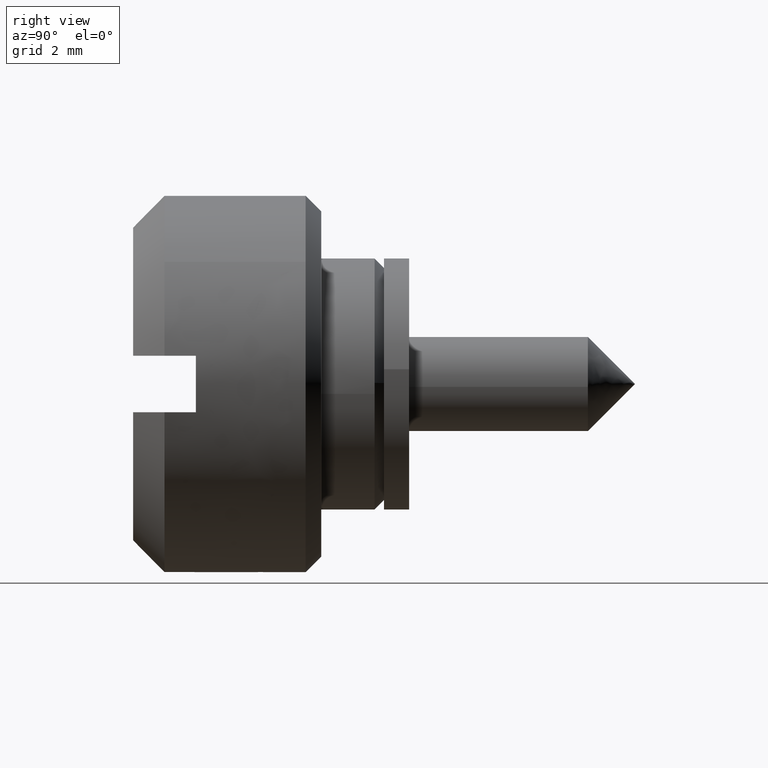
[diagram: clean part render]
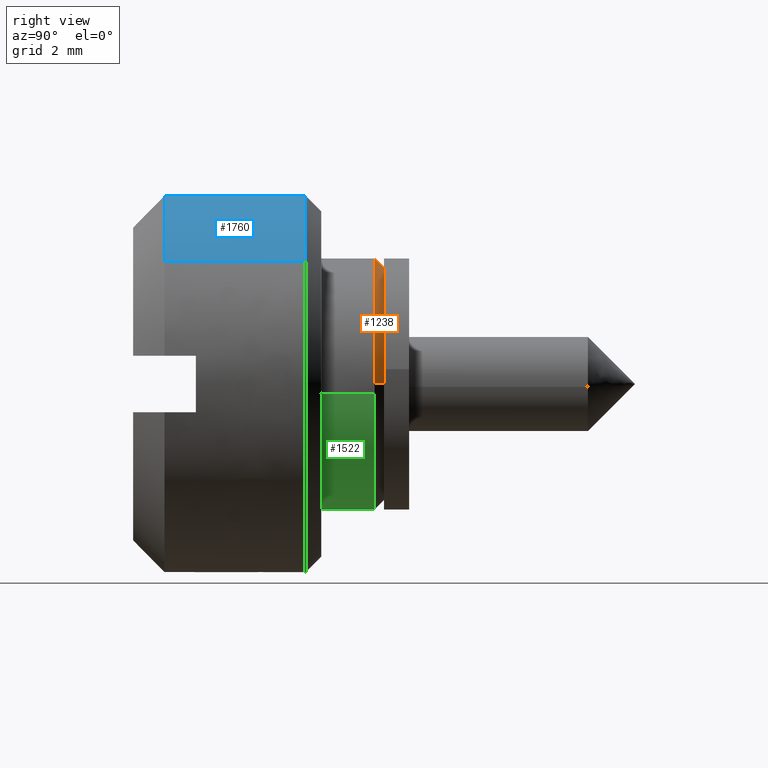
[diagram: same view with three faces highlighted in distinct colors, each labeled with its STEP entity id]
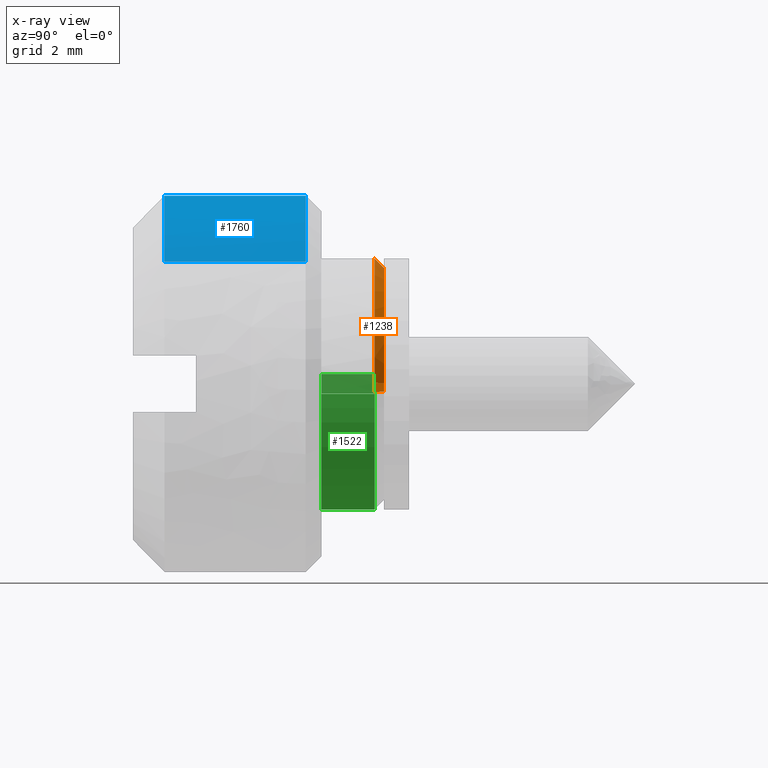
[diagram: x-ray of the same camera — body ghosted, the three highlighted faces saturated]
A machine part, right view with three faces highlighted in distinct colors.
The next image is the same camera in x-ray (body ghosted, the three faces saturated) — at least one of them is partly hidden behind the body in this view.
Their STEP definitions:

[orange] entity #1238 — the highlighted face is a freeform B-spline surface patch.
#1041=CARTESIAN_POINT('',(-0.300000000000820,3.991304303438717,-0.263609478885543));
#1042=VERTEX_POINT('',#1041);
#1058=CARTESIAN_POINT('',(-2.024692E-012,3.691956480681434,-0.243838767978479));
#1059=VERTEX_POINT('',#1058);
#1060=CARTESIAN_POINT('',(-2.024692E-012,3.691956480681434,-0.243838767978479));
#1061=CARTESIAN_POINT('',(-0.300000000000820,3.991304303438717,-0.263609478885543));
#1062=QUASI_UNIFORM_CURVE('',1,(#1060,#1061),.UNSPECIFIED.,.F.,.U.);
#1063=EDGE_CURVE('',#1059,#1042,#1062,.T.);
#1080=CARTESIAN_POINT('',(-1.196692E-012,-3.699859115338553,0.032288181352966));
#1081=VERTEX_POINT('',#1080);
#1097=CARTESIAN_POINT('',(-0.300000000000431,-3.999847692257118,0.034906141997079));
#1098=VERTEX_POINT('',#1097);
#1099=CARTESIAN_POINT('',(-1.196692E-012,-3.699859115338553,0.032288181352966));
#1100=CARTESIAN_POINT('',(-0.300000000000431,-3.999847692257118,0.034906141997079));
#1101=QUASI_UNIFORM_CURVE('',1,(#1099,#1100),.UNSPECIFIED.,.F.,.U.);
#1102=EDGE_CURVE('',#1081,#1098,#1101,.T.);
#1137=CARTESIAN_POINT('',(0.007499999999999,-3.692359400914452,0.032222732327909));
#1138=CARTESIAN_POINT('',(0.007499999999999,-3.660136668586706,3.724582133242360));
#1139=CARTESIAN_POINT('',(0.007499999999999,0.032222732327746,3.692359400914615));
#1140=CARTESIAN_POINT('',(0.007499999999999,3.724582133242197,3.660136668586870));
#1141=CARTESIAN_POINT('',(0.007499999999999,3.692359400914452,-0.032222732327582));
#1142=CARTESIAN_POINT('',(0.007499999999999,3.691437200159053,-0.137896472036863));
#1143=CARTESIAN_POINT('',(0.007499999999999,3.684472785111475,-0.243344500190182));
#1144=CARTESIAN_POINT('',(-0.307687499999966,-4.007534899540239,0.034973227235303));
#1145=CARTESIAN_POINT('',(-0.307687499999966,-3.972561672305100,4.042508126775543));
#1146=CARTESIAN_POINT('',(-0.307687499999966,0.034973227235139,4.007534899540403));
#1147=CARTESIAN_POINT('',(-0.307687499999966,4.042508126775378,3.972561672305263));
#1148=CARTESIAN_POINT('',(-0.307687499999966,4.007534899540239,-0.034973227234976));
#1149=CARTESIAN_POINT('',(-0.307687499999966,4.006533980802284,-0.149667154306374));
#1150=CARTESIAN_POINT('',(-0.307687499999966,3.998975091396463,-0.264116103346240));
#1158=(BOUNDED_SURFACE()B_SPLINE_SURFACE(2,1,((#1137,#1144),(#1138,#1145),(#1139,#1146),(#1140,#1147),(#1141,#1148),(#1142,#1149),(#1143,#1150)),.UNSPECIFIED.,.F.,.F.,.U.)B_SPLINE_SURFACE_WITH_KNOTS((3,2,2,3),(2,2),(0.0,6.640154065012492,13.280308130024981,13.545914292625490),(0.0,0.445742437190445),.UNSPECIFIED.)GEOMETRIC_REPRESENTATION_ITEM()RATIONAL_B_SPLINE_SURFACE(((1.0,1.0),(0.707106781186548,0.707106781186548),(1.0,1.0),(0.707106781186548,0.707106781186548),(1.0,1.0),(0.988284271247462,0.988284271247462),(0.977505800795127,0.977505800795127)))REPRESENTATION_ITEM('')SURFACE());
#1159=CARTESIAN_POINT('',(-0.299999999999967,3.987669622285608,0.313832731701521));
#1160=VERTEX_POINT('',#1159);
#1161=CARTESIAN_POINT('',(-0.299999999999967,3.987669622285608,0.313832731701521));
#1162=CARTESIAN_POINT('',(-0.299999999999967,4.000000000000000,0.157158593953940));
#1163=CARTESIAN_POINT('',(-0.299999999999967,4.0,1.634248E-013));
#1164=CARTESIAN_POINT('',(-0.299999999999967,4.000000000000001,-0.131948162093345));
#1165=CARTESIAN_POINT('',(-0.300000000000820,3.991304303438717,-0.263609478885543));
#1173=(BOUNDED_CURVE()B_SPLINE_CURVE(2,(#1161,#1162,#1163,#1164,#1165),.UNSPECIFIED.,.F.,.U.)B_SPLINE_CURVE_WITH_KNOTS((3,2,3),(0.736331457593343,0.750000000000000,0.761505472927328),.UNSPECIFIED.)CURVE()GEOMETRIC_REPRESENTATION_ITEM()RATIONAL_B_SPLINE_CURVE((0.969723683736795,0.983986306472105,1.0,0.986520500001375,0.974281704181216))REPRESENTATION_ITEM(''));
#1174=EDGE_CURVE('',#1160,#1042,#1173,.T.);
#1175=ORIENTED_EDGE('',*,*,#1174,.F.);
#1176=CARTESIAN_POINT('',(-0.299999999999967,0.0,4.000000000000163));
#1177=VERTEX_POINT('',#1176);
#1178=CARTESIAN_POINT('',(-0.299999999999967,0.0,4.000000000000163));
#1179=CARTESIAN_POINT('',(-0.299999999999967,3.697565362683348,4.000000000000163));
#1180=CARTESIAN_POINT('',(-0.299999999999967,3.987669622285608,0.313832731701521));
#1188=(BOUNDED_CURVE()B_SPLINE_CURVE(2,(#1178,#1179,#1180),.UNSPECIFIED.,.F.,.U.)B_SPLINE_CURVE_WITH_KNOTS((3,3),(0.500000000000000,0.736331457593343),.UNSPECIFIED.)CURVE()GEOMETRIC_REPRESENTATION_ITEM()RATIONAL_B_SPLINE_CURVE((1.0,0.723120474714443,0.969723683736795))REPRESENTATION_ITEM(''));
#1189=EDGE_CURVE('',#1177,#1160,#1188,.T.);
#1190=ORIENTED_EDGE('',*,*,#1189,.F.);
#1191=CARTESIAN_POINT('',(-0.300000000000431,-3.999847692257119,0.034906141997079));
#1192=CARTESIAN_POINT('',(-0.299999999999967,-3.965244842373139,4.000000000000163));
#1193=CARTESIAN_POINT('',(-0.299999999999967,0.0,4.000000000000163));
#1201=(BOUNDED_CURVE()B_SPLINE_CURVE(2,(#1191,#1192,#1193),.UNSPECIFIED.,.F.,.U.)B_SPLINE_CURVE_WITH_KNOTS((3,3),(0.251539894335288,0.500000000000000),.UNSPECIFIED.)CURVE()GEOMETRIC_REPRESENTATION_ITEM()RATIONAL_B_SPLINE_CURVE((0.996414028099709,0.708910879620528,1.0))REPRESENTATION_ITEM(''));
#1202=EDGE_CURVE('',#1098,#1177,#1201,.T.);
#1203=ORIENTED_EDGE('',*,*,#1202,.F.);
#1204=ORIENTED_EDGE('',*,*,#1102,.F.);
#1205=CARTESIAN_POINT('',(0.0,0.0,3.700000000000164));
#1206=VERTEX_POINT('',#1205);
#1207=CARTESIAN_POINT('',(0.0,0.0,3.700000000000164));
#1208=CARTESIAN_POINT('',(0.0,-3.667851479183951,3.700000000000164));
#1209=CARTESIAN_POINT('',(-1.196692E-012,-3.699859115338553,0.032288181352966));
#1217=(BOUNDED_CURVE()B_SPLINE_CURVE(2,(#1207,#1208,#1209),.UNSPECIFIED.,.F.,.U.)B_SPLINE_CURVE_WITH_KNOTS((3,3),(0.0,0.248460105664174),.UNSPECIFIED.)CURVE()GEOMETRIC_REPRESENTATION_ITEM()RATIONAL_B_SPLINE_CURVE((1.0,0.708910879621158,0.996414028098464))REPRESENTATION_ITEM(''));
#1218=EDGE_CURVE('',#1206,#1081,#1217,.T.);
#1219=ORIENTED_EDGE('',*,*,#1218,.F.);
#1220=CARTESIAN_POINT('',(-2.024692E-012,3.691956480681434,-0.243838767978479));
#1221=CARTESIAN_POINT('',(0.0,3.700000000000001,-0.122052049945640));
#1222=CARTESIAN_POINT('',(0.0,3.700000000000000,1.634248E-013));
#1223=CARTESIAN_POINT('',(0.0,3.700000000000000,3.700000000000164));
#1224=CARTESIAN_POINT('',(0.0,0.0,3.700000000000164));
#1232=(BOUNDED_CURVE()B_SPLINE_CURVE(2,(#1220,#1221,#1222,#1223,#1224),.UNSPECIFIED.,.F.,.U.)B_SPLINE_CURVE_WITH_KNOTS((3,2,3),(0.738494527071806,0.750000000000000,1.0),.UNSPECIFIED.)CURVE()GEOMETRIC_REPRESENTATION_ITEM()RATIONAL_B_SPLINE_CURVE((0.974281704179374,0.986520500000361,1.0,0.707106781186548,1.0))REPRESENTATION_ITEM(''));
#1233=EDGE_CURVE('',#1059,#1206,#1232,.T.);
#1234=ORIENTED_EDGE('',*,*,#1233,.F.);
#1235=ORIENTED_EDGE('',*,*,#1063,.T.);
#1236=EDGE_LOOP('',(#1175,#1190,#1203,#1204,#1219,#1234,#1235));
#1237=FACE_OUTER_BOUND('',#1236,.T.);
#1238=ADVANCED_FACE('',(#1237),#1158,.T.);

[blue] entity #1760 — the highlighted face is a freeform B-spline surface patch.
#1345=CARTESIAN_POINT('',(-2.500000000000060,3.896687813416691,4.562436200624721));
#1346=VERTEX_POINT('',#1345);
#1362=CARTESIAN_POINT('',(-2.500000000000060,0.0,6.000000000000163));
#1363=VERTEX_POINT('',#1362);
#1364=CARTESIAN_POINT('',(-2.500000000000060,0.0,6.000000000000163));
#1365=CARTESIAN_POINT('',(-2.500000000000060,2.213516150637296,6.000000000000163));
#1366=CARTESIAN_POINT('',(-2.500000000000060,3.896687813416691,4.562436200624721));
#1374=(BOUNDED_CURVE()B_SPLINE_CURVE(2,(#1364,#1365,#1366),.UNSPECIFIED.,.F.,.U.)B_SPLINE_CURVE_WITH_KNOTS((3,3),(0.500000000000000,0.613143129778950),.UNSPECIFIED.)CURVE()GEOMETRIC_REPRESENTATION_ITEM()RATIONAL_B_SPLINE_CURVE((1.0,0.867444578129661,0.854871038655955))REPRESENTATION_ITEM(''));
#1375=EDGE_CURVE('',#1363,#1346,#1374,.T.);
#1377=CARTESIAN_POINT('',(-2.500000000000060,-4.562436147986986,3.896687875047556));
#1378=VERTEX_POINT('',#1377);
#1379=CARTESIAN_POINT('',(-2.500000000000059,-4.562436147986987,3.896687875047557));
#1380=CARTESIAN_POINT('',(-2.500000000000061,-2.766038548208157,6.000000000000165));
#1381=CARTESIAN_POINT('',(-2.500000000000060,0.0,6.000000000000163));
#1389=(BOUNDED_CURVE()B_SPLINE_CURVE(2,(#1379,#1380,#1381),.UNSPECIFIED.,.F.,.U.)B_SPLINE_CURVE_WITH_KNOTS((3,3),(0.363143133861730,0.500000000000000),.UNSPECIFIED.)CURVE()GEOMETRIC_REPRESENTATION_ITEM()RATIONAL_B_SPLINE_CURVE((0.854871037748521,0.839662207840161,1.0))REPRESENTATION_ITEM(''));
#1390=EDGE_CURVE('',#1378,#1363,#1389,.T.);
#1601=CARTESIAN_POINT('',(-6.999999999999997,-4.562436435085173,3.896687538898594));
#1602=VERTEX_POINT('',#1601);
#1693=CARTESIAN_POINT('',(-6.999999999999996,3.896688274229982,4.562435807053074));
#1694=VERTEX_POINT('',#1693);
#1708=CARTESIAN_POINT('',(-6.999999999999996,3.896688274229982,4.562435807053074));
#1709=CARTESIAN_POINT('',(-2.500000000000060,3.896687813416691,4.562436200624721));
#1710=QUASI_UNIFORM_CURVE('',1,(#1708,#1709),.UNSPECIFIED.,.F.,.U.);
#1711=EDGE_CURVE('',#1694,#1346,#1710,.T.);
#1717=CARTESIAN_POINT('',(-6.999999999999997,-4.562436435085173,3.896687538898594));
#1718=CARTESIAN_POINT('',(-2.500000000000060,-4.562436147986986,3.896687875047556));
#1719=QUASI_UNIFORM_CURVE('',1,(#1717,#1718),.UNSPECIFIED.,.F.,.U.);
#1720=EDGE_CURVE('',#1602,#1378,#1719,.T.);
#1725=CARTESIAN_POINT('',(-7.112500000000000,3.896688289981100,4.562435793600348));
#1726=CARTESIAN_POINT('',(-7.112500000000000,-0.665747503619084,8.459124083581449));
#1727=CARTESIAN_POINT('',(-7.112500000000000,-4.562435793600185,3.896688289981264));
#1728=CARTESIAN_POINT('',(-2.384687500000060,3.896688289981100,4.562435793600348));
#1729=CARTESIAN_POINT('',(-2.384687500000061,-0.665747503619084,8.459124083581449));
#1730=CARTESIAN_POINT('',(-2.384687500000061,-4.562435793600185,3.896688289981264));
#1738=(BOUNDED_SURFACE()B_SPLINE_SURFACE(2,1,((#1725,#1728),(#1726,#1729),(#1727,#1730)),.UNSPECIFIED.,.F.,.F.,.U.)B_SPLINE_SURFACE_WITH_KNOTS((3,3),(2,2),(0.0,9.941125496954276),(0.0,4.727812499999940),.UNSPECIFIED.)GEOMETRIC_REPRESENTATION_ITEM()RATIONAL_B_SPLINE_SURFACE(((1.0,1.0),(0.707106781186548,0.707106781186548),(1.0,1.0)))REPRESENTATION_ITEM('')SURFACE());
#1739=CARTESIAN_POINT('',(-6.999999999999996,3.896688274229982,4.562435807053074));
#1740=CARTESIAN_POINT('',(-7.0,2.213516839125651,6.000000000000163));
#1741=CARTESIAN_POINT('',(-7.0,0.0,6.000000000000163));
#1742=CARTESIAN_POINT('',(-7.0,-2.766039084223933,6.000000000000163));
#1743=CARTESIAN_POINT('',(-6.999999999999997,-4.562436435085173,3.896687538898594));
#1751=(BOUNDED_CURVE()B_SPLINE_CURVE(2,(#1739,#1740,#1741,#1742,#1743),.UNSPECIFIED.,.F.,.U.)B_SPLINE_CURVE_WITH_KNOTS((3,2,3),(0.251097611016678,0.500000000000000,0.801962241999008),.UNSPECIFIED.)CURVE()GEOMETRIC_REPRESENTATION_ITEM()RATIONAL_B_SPLINE_CURVE((0.879146101827114,0.879674384710834,1.0,0.854023929978987,0.884364905484971))REPRESENTATION_ITEM(''));
#1752=EDGE_CURVE('',#1694,#1602,#1751,.T.);
#1753=ORIENTED_EDGE('',*,*,#1752,.T.);
#1754=ORIENTED_EDGE('',*,*,#1720,.T.);
#1755=ORIENTED_EDGE('',*,*,#1390,.T.);
#1756=ORIENTED_EDGE('',*,*,#1375,.T.);
#1757=ORIENTED_EDGE('',*,*,#1711,.F.);
#1758=EDGE_LOOP('',(#1753,#1754,#1755,#1756,#1757));
#1759=FACE_OUTER_BOUND('',#1758,.T.);
#1760=ADVANCED_FACE('',(#1759),#1738,.T.);

[green] entity #1522 — the highlighted face is a freeform B-spline surface patch.
#1041=CARTESIAN_POINT('',(-0.300000000000820,3.991304303438717,-0.263609478885543));
#1042=VERTEX_POINT('',#1041);
#1043=CARTESIAN_POINT('',(-0.299999999999967,0.0,-3.999999999999837));
#1044=VERTEX_POINT('',#1043);
#1045=CARTESIAN_POINT('',(-0.300000000000820,3.991304303438717,-0.263609478885543));
#1046=CARTESIAN_POINT('',(-0.299999999999967,3.744530847111790,-3.999999999999837));
#1047=CARTESIAN_POINT('',(-0.299999999999967,0.0,-3.999999999999837));
#1055=(BOUNDED_CURVE()B_SPLINE_CURVE(2,(#1045,#1046,#1047),.UNSPECIFIED.,.F.,.U.)B_SPLINE_CURVE_WITH_KNOTS((3,3),(0.761505472927328,1.0),.UNSPECIFIED.)CURVE()GEOMETRIC_REPRESENTATION_ITEM()RATIONAL_B_SPLINE_CURVE((0.974281704181216,0.720586281185172,1.0))REPRESENTATION_ITEM(''));
#1056=EDGE_CURVE('',#1042,#1044,#1055,.T.);
#1104=CARTESIAN_POINT('',(-0.299999999999967,-3.987669622285608,-0.313832731701195));
#1105=VERTEX_POINT('',#1104);
#1121=CARTESIAN_POINT('',(-0.299999999999967,0.0,-3.999999999999837));
#1122=CARTESIAN_POINT('',(-0.299999999999967,-3.697565362683349,-3.999999999999838));
#1123=CARTESIAN_POINT('',(-0.299999999999967,-3.987669622285608,-0.313832731701195));
#1131=(BOUNDED_CURVE()B_SPLINE_CURVE(2,(#1121,#1122,#1123),.UNSPECIFIED.,.F.,.U.)B_SPLINE_CURVE_WITH_KNOTS((3,3),(0.0,0.236331457593343),.UNSPECIFIED.)CURVE()GEOMETRIC_REPRESENTATION_ITEM()RATIONAL_B_SPLINE_CURVE((1.0,0.723120474714443,0.969723683736795))REPRESENTATION_ITEM(''));
#1132=EDGE_CURVE('',#1044,#1105,#1131,.T.);
#1159=CARTESIAN_POINT('',(-0.299999999999967,3.987669622285608,0.313832731701521));
#1160=VERTEX_POINT('',#1159);
#1161=CARTESIAN_POINT('',(-0.299999999999967,3.987669622285608,0.313832731701521));
#1162=CARTESIAN_POINT('',(-0.299999999999967,4.000000000000000,0.157158593953940));
#1163=CARTESIAN_POINT('',(-0.299999999999967,4.0,1.634248E-013));
#1164=CARTESIAN_POINT('',(-0.299999999999967,4.000000000000001,-0.131948162093345));
#1165=CARTESIAN_POINT('',(-0.300000000000820,3.991304303438717,-0.263609478885543));
#1173=(BOUNDED_CURVE()B_SPLINE_CURVE(2,(#1161,#1162,#1163,#1164,#1165),.UNSPECIFIED.,.F.,.U.)B_SPLINE_CURVE_WITH_KNOTS((3,2,3),(0.736331457593343,0.750000000000000,0.761505472927328),.UNSPECIFIED.)CURVE()GEOMETRIC_REPRESENTATION_ITEM()RATIONAL_B_SPLINE_CURVE((0.969723683736795,0.983986306472105,1.0,0.986520500001375,0.974281704181216))REPRESENTATION_ITEM(''));
#1174=EDGE_CURVE('',#1160,#1042,#1173,.T.);
#1455=CARTESIAN_POINT('',(-2.042500000000001,-3.987669334932511,-0.313836382911219));
#1456=CARTESIAN_POINT('',(-2.042500000000001,-3.673832952021128,-4.301505717843729));
#1457=CARTESIAN_POINT('',(-2.042500000000001,0.313836382911382,-3.987669334932347));
#1458=CARTESIAN_POINT('',(-2.042500000000001,4.301505717843893,-3.673832952020966));
#1459=CARTESIAN_POINT('',(-2.042500000000001,3.987669334932511,0.313836382911546));
#1460=CARTESIAN_POINT('',(-0.256437499999966,-3.987669334932511,-0.313836382911219));
#1461=CARTESIAN_POINT('',(-0.256437499999966,-3.673832952021128,-4.301505717843729));
#1462=CARTESIAN_POINT('',(-0.256437499999966,0.313836382911382,-3.987669334932347));
#1463=CARTESIAN_POINT('',(-0.256437499999966,4.301505717843893,-3.673832952020966));
#1464=CARTESIAN_POINT('',(-0.256437499999966,3.987669334932511,0.313836382911546));
#1472=(BOUNDED_SURFACE()B_SPLINE_SURFACE(2,1,((#1455,#1460),(#1456,#1461),(#1457,#1462),(#1458,#1463),(#1459,#1464)),.UNSPECIFIED.,.F.,.F.,.U.)B_SPLINE_SURFACE_WITH_KNOTS((3,2,3),(2,2),(0.0,6.627416997969518,13.254833995939039),(0.0,1.0),.UNSPECIFIED.)GEOMETRIC_REPRESENTATION_ITEM()RATIONAL_B_SPLINE_SURFACE(((1.0,1.0),(0.707106781186548,0.707106781186548),(1.0,1.0),(0.707106781186548,0.707106781186548),(1.0,1.0)))REPRESENTATION_ITEM('')SURFACE());
#1473=CARTESIAN_POINT('',(-2.0,0.0,-3.999999999999837));
#1474=VERTEX_POINT('',#1473);
#1475=CARTESIAN_POINT('',(-2.000000000000041,-3.987669625792396,-0.313832687142181));
#1476=VERTEX_POINT('',#1475);
#1477=CARTESIAN_POINT('',(-2.0,0.0,-3.999999999999837));
#1478=CARTESIAN_POINT('',(-2.000000000000000,-3.697565404128436,-3.999999999999837));
#1479=CARTESIAN_POINT('',(-2.000000000000041,-3.987669625792397,-0.313832687142181));
#1487=(BOUNDED_CURVE()B_SPLINE_CURVE(2,(#1477,#1478,#1479),.UNSPECIFIED.,.F.,.U.)B_SPLINE_CURVE_WITH_KNOTS((3,3),(0.0,0.236331459508875),.UNSPECIFIED.)CURVE()GEOMETRIC_REPRESENTATION_ITEM()RATIONAL_B_SPLINE_CURVE((1.0,0.723120472470258,0.969723687734370))REPRESENTATION_ITEM(''));
#1488=EDGE_CURVE('',#1474,#1476,#1487,.T.);
#1489=ORIENTED_EDGE('',*,*,#1488,.F.);
#1490=CARTESIAN_POINT('',(-2.000000000000041,3.987669625792396,0.313832687142508));
#1491=VERTEX_POINT('',#1490);
#1492=CARTESIAN_POINT('',(-2.000000000000041,3.987669625792397,0.313832687142508));
#1493=CARTESIAN_POINT('',(-2.000000000000000,4.000000000000001,0.157158571571045));
#1494=CARTESIAN_POINT('',(-2.0,4.0,1.634248E-013));
#1495=CARTESIAN_POINT('',(-2.000000000000000,4.000000000000000,-3.999999999999837));
#1496=CARTESIAN_POINT('',(-2.0,0.0,-3.999999999999837));
#1504=(BOUNDED_CURVE()B_SPLINE_CURVE(2,(#1492,#1493,#1494,#1495,#1496),.UNSPECIFIED.,.F.,.U.)B_SPLINE_CURVE_WITH_KNOTS((3,2,3),(0.736331459508875,0.750000000000000,1.0),.UNSPECIFIED.)CURVE()GEOMETRIC_REPRESENTATION_ITEM()RATIONAL_B_SPLINE_CURVE((0.969723687734370,0.983986308716290,1.0,0.707106781186548,1.0))REPRESENTATION_ITEM(''));
#1505=EDGE_CURVE('',#1491,#1474,#1504,.T.);
#1506=ORIENTED_EDGE('',*,*,#1505,.F.);
#1507=CARTESIAN_POINT('',(-2.000000000000041,3.987669625792396,0.313832687142508));
#1508=CARTESIAN_POINT('',(-0.299999999999967,3.987669622285608,0.313832731701521));
#1509=QUASI_UNIFORM_CURVE('',1,(#1507,#1508),.UNSPECIFIED.,.F.,.U.);
#1510=EDGE_CURVE('',#1491,#1160,#1509,.T.);
#1511=ORIENTED_EDGE('',*,*,#1510,.T.);
#1512=ORIENTED_EDGE('',*,*,#1174,.T.);
#1513=ORIENTED_EDGE('',*,*,#1056,.T.);
#1514=ORIENTED_EDGE('',*,*,#1132,.T.);
#1515=CARTESIAN_POINT('',(-2.000000000000041,-3.987669625792396,-0.313832687142181));
#1516=CARTESIAN_POINT('',(-0.299999999999967,-3.987669622285608,-0.313832731701195));
#1517=QUASI_UNIFORM_CURVE('',1,(#1515,#1516),.UNSPECIFIED.,.F.,.U.);
#1518=EDGE_CURVE('',#1476,#1105,#1517,.T.);
#1519=ORIENTED_EDGE('',*,*,#1518,.F.);
#1520=EDGE_LOOP('',(#1489,#1506,#1511,#1512,#1513,#1514,#1519));
#1521=FACE_OUTER_BOUND('',#1520,.T.);
#1522=ADVANCED_FACE('',(#1521),#1472,.T.);